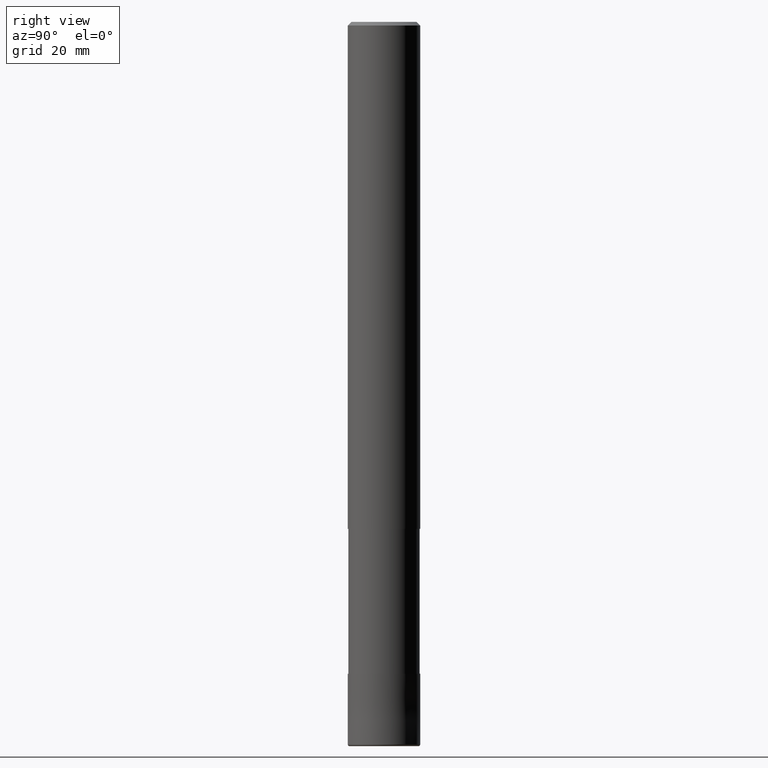
[diagram: clean part render]
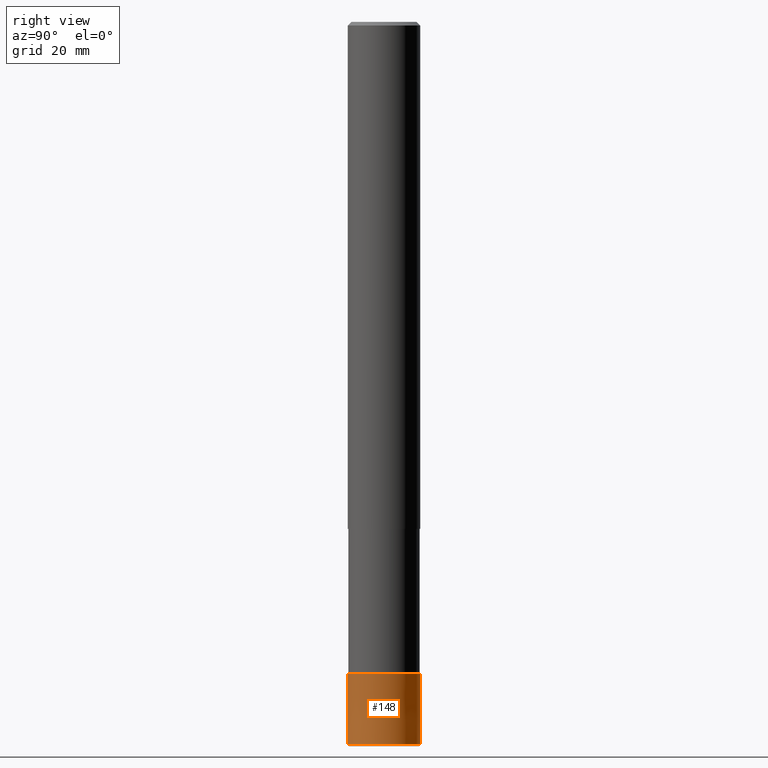
[diagram: same view with one face highlighted and labeled with its STEP entity id]
A machine part, right view. The second image highlights one B-rep face of the part: STEP entity #148.
In plain terms, the highlighted conical surface has half-angle 0 deg.
Its self-contained STEP definition (entity closure, byte-faithful):
#96=EDGE_CURVE('',#172,#178,#233,.T.);
#108=EDGE_CURVE('',#164,#172,#247,.T.);
#142=EDGE_CURVE('',#164,#170,#286,.T.);
#148=ADVANCED_FACE('',(#292),#293,.T.);
#164=VERTEX_POINT('',#311);
#170=VERTEX_POINT('',#319);
#172=VERTEX_POINT('',#321);
#178=VERTEX_POINT('',#328);
#196=EDGE_CURVE('',#178,#170,#347,.T.);
#233=CIRCLE('',#381,6.0);
#247=LINE('',#401,#402);
#286=CIRCLE('',#447,5.9999);
#292=FACE_OUTER_BOUND('',#453,.T.);
#293=CONICAL_SURFACE('',#454,5.99995,8.5470085467805E-006);
#311=CARTESIAN_POINT('',(0.0,5.9999,-108.0));
#319=CARTESIAN_POINT('',(7.34751566229888E-016,-5.9999,-108.0));
#321=CARTESIAN_POINT('',(0.0,6.0,-119.7));
#328=CARTESIAN_POINT('',(7.34763812293427E-016,-6.0,-119.7));
#347=LINE('',#521,#522);
#381=AXIS2_PLACEMENT_3D('',#541,#542,#543);
#401=CARTESIAN_POINT('',(-7.34757689261657E-016,5.99995,-113.85));
#402=VECTOR('',#557,1.0);
#447=AXIS2_PLACEMENT_3D('',#613,#614,#615);
#453=EDGE_LOOP('',(#621,#622,#623,#624));
#454=AXIS2_PLACEMENT_3D('',#625,#626,#627);
#521=CARTESIAN_POINT('',(7.34757689261657E-016,-5.99995,-113.85));
#522=VECTOR('',#695,1.0);
#541=CARTESIAN_POINT('',(0.0,0.0,-119.7));
#542=DIRECTION('',(0.0,0.0,-1.0));
#543=DIRECTION('',(0.0,1.0,0.0));
#557=DIRECTION('',(-1.04667209724341E-021,8.54700854667644E-006,-0.999999999963474));
#613=CARTESIAN_POINT('',(0.0,0.0,-108.0));
#614=DIRECTION('',(0.0,0.0,-1.0));
#615=DIRECTION('',(0.0,1.0,0.0));
#621=ORIENTED_EDGE('',*,*,#108,.F.);
#622=ORIENTED_EDGE('',*,*,#142,.T.);
#623=ORIENTED_EDGE('',*,*,#196,.F.);
#624=ORIENTED_EDGE('',*,*,#96,.F.);
#625=CARTESIAN_POINT('',(0.0,0.0,-113.85));
#626=DIRECTION('',(0.0,-0.0,-1.0));
#627=DIRECTION('',(0.0,1.0,0.0));
#695=DIRECTION('',(-1.04667209724341E-021,8.54700854667644E-006,0.999999999963474));